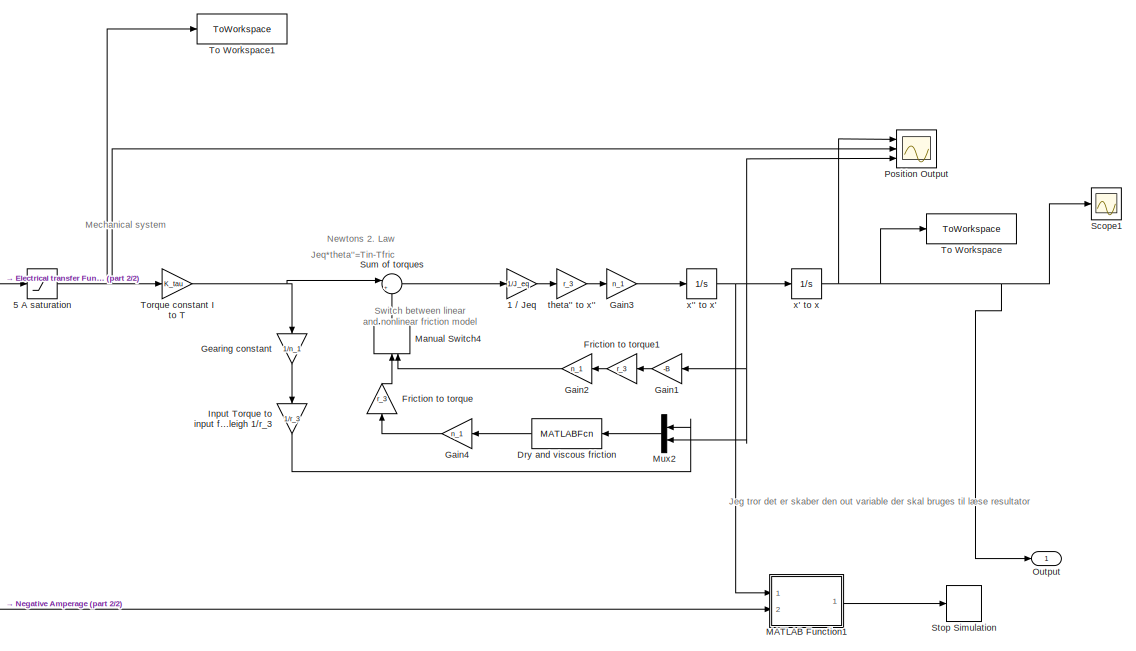
[diagram: root canvas - part 1/2, center side, full height]
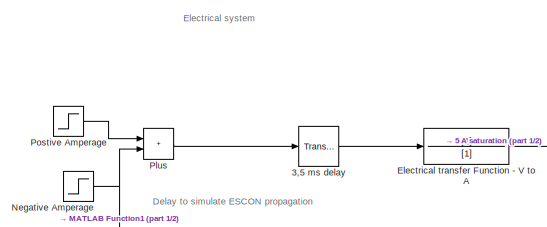
[diagram: root canvas - part 2/2, middle left region]
MODEL slx_9c3dbd35ce85
KIND model
CONFIG AbsTol = auto
CONFIG EnableMultiTasking = off
CONFIG FixedStep = 0.00001
CONFIG MaxStep = auto
CONFIG MinStep = auto
CONFIG RelTol = 1e-3
CONFIG SampleTimeConstraint = Unconstrained
CONFIG SolverName = FixedStepAuto
CONFIG StartTime = 0.0
CONFIG StopTime = 2
BLOCK [Gain] 1 // Jeq
  Gain = 1/J_eq
BLOCK [TransportDelay] 3,5 ms delay
  DelayTime = 0.0035
  Ports = [1, 1]
BLOCK [Saturate] 5 A saturation
  LowerLimit = -5
  UpperLimit = 5
BLOCK [MATLABFcn] Dry and viscous friction
  MATLABFcn = CoulombAndViscousFriction(u)
  NameLocation = top
  OutputDimensions = 1
  Ports = [1, 1]
BLOCK [TransferFcn] Electrical transfer Function  - V to A
  Denominator = [1]
  NameLocation = top
BLOCK [Gain] Friction to torque
  Gain = r_3
  NameLocation = right
BLOCK [Gain] Friction to torque1
  Gain = r_3
  NameLocation = top
BLOCK [Gain] Gain1
  Gain = -B
  NameLocation = top
BLOCK [Gain] Gain2
  Gain = n_1
  NameLocation = top
BLOCK [Gain] Gain3
  Gain = n_1
BLOCK [Gain] Gain4
  Gain = n_1
  NameLocation = top
BLOCK [Gain] Gearing constant
  Gain = 1/n_1
  NameLocation = left
BLOCK [Gain] Input Torque to input force on sleigh 1//r_3
  Gain = 1/r_3
  NameLocation = left
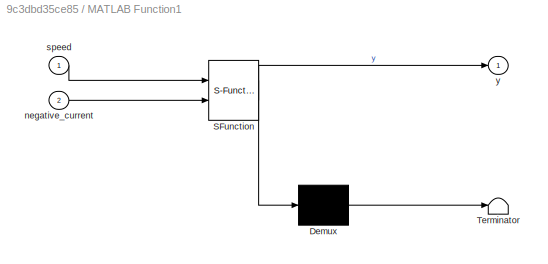
BLOCK [SubSystem] MATLAB Function1
  ErrorFcn = Stateflow.Translate.translate
  PermitHierarchicalResolution = ExplicitOnly
  Ports = [2, 1]
  RequestExecContextInheritance = off
  SFBlockType = MATLAB Function
  TreatAsAtomicUnit = on
BLOCK [Demux] MATLAB Function1/ Demux 
  Outputs = 1
  Ports = [1, 1]
BLOCK [S-Function] MATLAB Function1/ SFunction 
  EnableBusSupport = on
  FunctionName = sf_sfun
  PortCounts = [2 2]
  Ports = [2, 2]
  SFcnIsStateOwnerBlock = off
  SFunctionDeploymentMode = off
  Tag = Stateflow S-Function 1
BLOCK [Terminator] MATLAB Function1/ Terminator 
BLOCK [Inport] MATLAB Function1/negative_current
  Port = 2
BLOCK [Inport] MATLAB Function1/speed
BLOCK [Outport] MATLAB Function1/y
BLOCK [ManualSwitch] Manual Switch4
  NameLocation = right
BLOCK [Mux] Mux2
  DisplayOption = bar
  Inputs = 2
  NameLocation = top
  Ports = [2, 1]
BLOCK [Step] Negative Amperage
  After = -10
  SampleTime = 0
  Time = switch_on
BLOCK [Outport] Output
BLOCK [Sum] Plus
  IconShape = rectangular
  Ports = [2, 1]
BLOCK [Scope] Position Output
  Commented = on
  Floating = off
  NumInputPorts = 3
  Ports = [3]
  ScopeSpecificationString = Simulink.scopes.TimeScopeBlockCfg('CurrentConfiguration', extmgr.ConfigurationSet(extmgr.Configuration('Core','General UI',true),extmgr.Configuration('Core','Source UI',true),extmgr.Configuration('Sources','WiredSimulink',true,'DataLoggingVariableName','ScopeData3'),extmgr.Configuration('Visuals','Time Domain',true,'SerializedDisplays',{struct('MinYLimReal','-0.13537','MaxYLimReal','1.21834','YLab...<+3114ch>
BLOCK [Step] Postive Amperage
  After = 5
  SampleTime = 0
  Time = 0
BLOCK [Scope] Scope1
  Commented = on
  Floating = off
  NumInputPorts = 1
  Ports = [1]
  ScopeSpecificationString = Simulink.scopes.TimeScopeBlockCfg('CurrentConfiguration', extmgr.ConfigurationSet(extmgr.Configuration('Core','General UI',true),extmgr.Configuration('Core','Source UI',true),extmgr.Configuration('Sources','WiredSimulink',true),extmgr.Configuration('Visuals','Time Domain',true,'SerializedDisplays',{struct('MinYLimReal','-0.18776','MaxYLimReal','1.68986','YLabelReal','','MinYLimMag','0.00000','MaxY...<+1328ch>
BLOCK [Stop] Stop Simulation
BLOCK [Sum] Sum of torques
  Inputs = |++
  Ports = [2, 1]
BLOCK [ToWorkspace] To Workspace
  FixptAsFi = on
  MaxDataPoints = inf
  Ports = [1]
  SampleTime = -1
  SaveFormat = Timeseries
  VariableName = last_test
BLOCK [ToWorkspace] To Workspace1
  FixptAsFi = on
  MaxDataPoints = inf
  Ports = [1]
  SampleTime = -1
  SaveFormat = Timeseries
  VariableName = optimization_current
BLOCK [Gain] Torque constant I to T 
  Gain = K_tau
BLOCK [Gain] theta'' to x''
  Gain = r_3
BLOCK [Integrator] x' to x
  Ports = [1, 1]
BLOCK [Integrator] x'' to x'
  Ports = [1, 1]
ANNOTATION (root): Delay to simulate ESCON propagation
ANNOTATION (root): Electrical system
ANNOTATION (root): Jeg tror det er skaber den out variable der skal bruges til læse resultator
ANNOTATION (root): Jeq*theta''=Tin-Tfric
ANNOTATION (root): Mechanical system
ANNOTATION (root): Newtons 2. Law
ANNOTATION (root): Switch between linear and nonlinear friction model
LINE 1 // Jeq:1 -> theta'' to x'':1
LINE 3,5 ms delay:1 -> Electrical transfer Function  - V to A:1
NET 5 A saturation:1 -> Position Output:2, To Workspace1:1, Torque constant I to T :1
LINE Dry and viscous friction:1 -> Gain4:1
LINE Electrical transfer Function  - V to A:1 -> 5 A saturation:1
LINE Friction to torque1:1 -> Gain2:1
LINE Friction to torque:1 -> Manual Switch4:1
LINE Gain1:1 -> Friction to torque1:1
LINE Gain2:1 -> Manual Switch4:2
LINE Gain3:1 -> x'' to x':1
LINE Gain4:1 -> Friction to torque:1
LINE Gearing constant:1 -> Input Torque to input force on sleigh 1//r_3:1
LINE Input Torque to input force on sleigh 1//r_3:1 -> Mux2:1
LINE MATLAB Function1:1 -> Stop Simulation:1
LINE Manual Switch4:1 -> Sum of torques:2
LINE Mux2:1 -> Dry and viscous friction:1
NET Negative Amperage:1 -> MATLAB Function1:2, Plus:2
LINE Plus:1 -> 3,5 ms delay:1
LINE Postive Amperage:1 -> Plus:1
LINE Sum of torques:1 -> 1 // Jeq:1
NET Torque constant I to T :1 -> Gearing constant:1, Sum of torques:1
LINE theta'' to x'':1 -> Gain3:1
NET x' to x:1 -> Output:1, Position Output:1, Scope1:1, To Workspace:1
NET x'' to x':1 -> Gain1:1, MATLAB Function1:1, Mux2:2, Position Output:3, x' to x:1
note: NET lines group one-source signal fan-out (src -> all destinations, sorted); 1:1 wires keep LINE
CHART MATLAB Function1 states=1 transitions=1
  STATE_LABEL 'eML_blk_kernel()'
  STATE_LABEL 'SCRIPT:\nfunction y = fcn(speed, negative_current)\n\n\n\nif (abs(speed) < 0.01) && (negative_current ~= 0)\n    y = 1;\nelse\n    y = 0;\nend\n'
CHART  states=0 transitions=0
